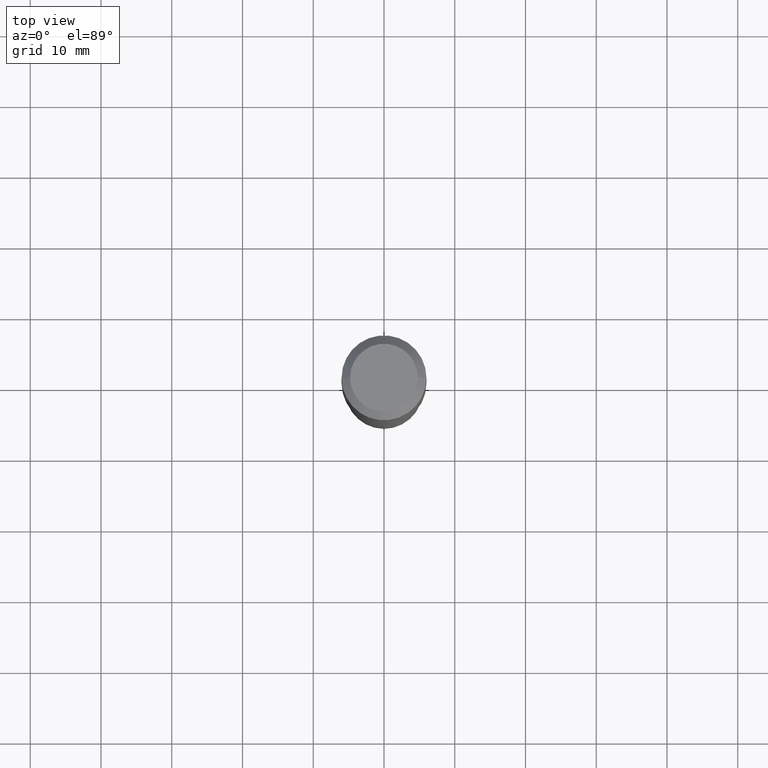
[diagram: clean part render]
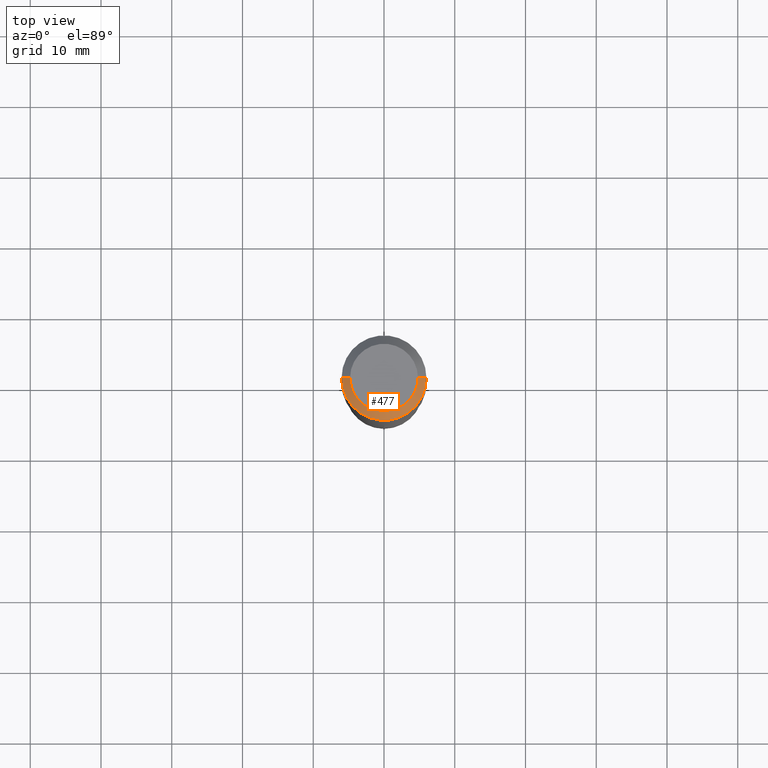
[diagram: same view with one face highlighted and labeled with its STEP entity id]
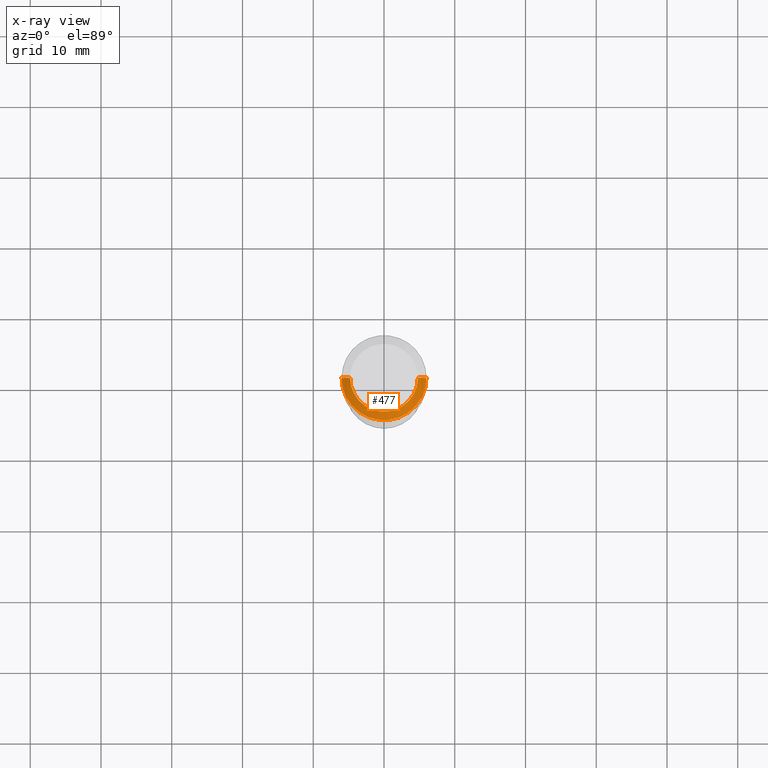
[diagram: x-ray of the same camera — body ghosted, the highlighted face saturated]
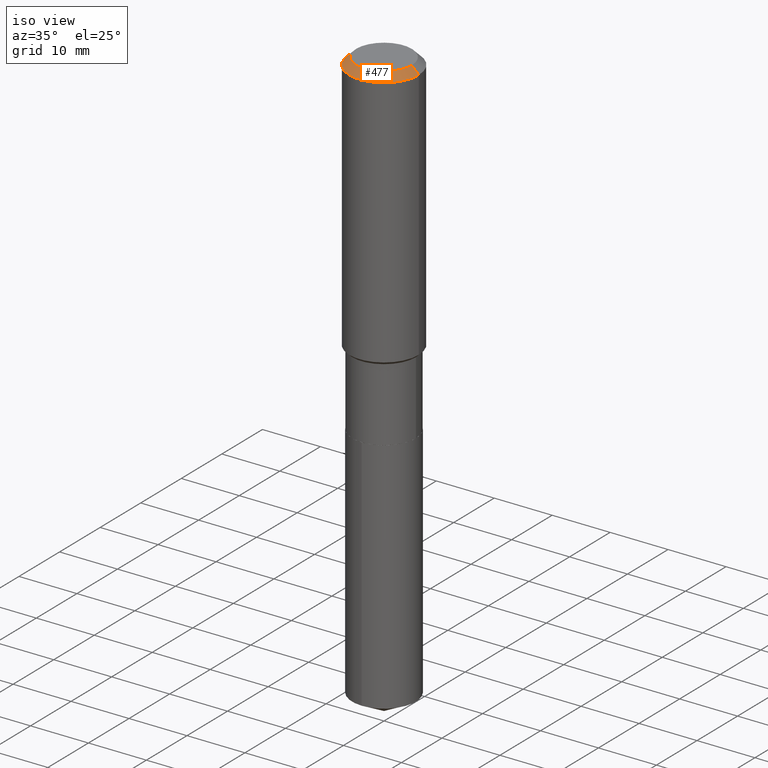
[diagram: same view with one face highlighted and labeled with its STEP entity id]
A machine part, top view. The second image highlights one B-rep face of the part: STEP entity #477.
The next image is the same camera in x-ray: the body ghosted, the highlighted face saturated — about 0% of this face is hidden behind the body in this view.
A second angle (iso view) of the same face is appended — the face is thin or edge-on in the first view.
In plain terms, the highlighted conical surface has half-angle 45 deg.
Its self-contained STEP definition (entity closure, byte-faithful):
#2 = EDGE_LOOP ( 'NONE', ( #228, #254, #69, #374 ) ) ;
#13 = LINE ( 'NONE', #47, #466 ) ;
#17 = AXIS2_PLACEMENT_3D ( 'NONE', #303, #269, #112 ) ;
#22 = EDGE_CURVE ( 'NONE', #409, #284, #159, .T. ) ;
#35 = CARTESIAN_POINT ( 'NONE',  ( -0.1889600000000000168, 1.401969416799070942E-15, 3.855188123706346622E-18 ) ) ;
#47 = CARTESIAN_POINT ( 'NONE',  ( 0.2361999999999999933, -1.785387205520586782E-15, -0.04724000000000028177 ) ) ;
#50 = CARTESIAN_POINT ( 'NONE',  ( -0.2361999999999999933, 1.484438206022545019E-15, -0.04724000000000028177 ) ) ;
#69 = ORIENTED_EDGE ( 'NONE', *, *, #386, .T. ) ;
#96 = CARTESIAN_POINT ( 'NONE',  ( 1.155239464041865506E-30, -1.649375784469511859E-16, -0.04724000000000028177 ) ) ;
#104 = VERTEX_POINT ( 'NONE', #317 ) ;
#105 = DIRECTION ( 'NONE',  ( -0.7071067811865453523, 2.468850131082234184E-15, -0.7071067811865496822 ) ) ;
#112 = DIRECTION ( 'NONE',  ( 1.000000000000000000, -6.982962677686266711E-15, 0.000000000000000000 ) ) ;
#118 = CARTESIAN_POINT ( 'NONE',  ( -9.427742298522546243E-47, 1.346031739168365344E-32, 3.855188123715862256E-18 ) ) ;
#159 = CIRCLE ( 'NONE', #452, 0.1889600000000000168 ) ;
#168 = DIRECTION ( 'NONE',  ( 0.7071067811865453523, -7.319954787623248157E-15, -0.7071067811865496822 ) ) ;
#173 = FACE_OUTER_BOUND ( 'NONE', #2, .T. ) ;
#204 = DIRECTION ( 'NONE',  ( -1.000000000000000000, 6.982962677686266711E-15, 0.000000000000000000 ) ) ;
#218 = CIRCLE ( 'NONE', #17, 0.2361999999999999933 ) ;
#228 = ORIENTED_EDGE ( 'NONE', *, *, #343, .F. ) ;
#238 = LINE ( 'NONE', #50, #390 ) ;
#254 = ORIENTED_EDGE ( 'NONE', *, *, #22, .F. ) ;
#259 = DIRECTION ( 'NONE',  ( 2.445468806185136597E-29, -3.491481338843145583E-15, -1.000000000000000000 ) ) ;
#266 = CONICAL_SURFACE ( 'NONE', #371, 0.2361999999999999933, 0.7853981633974452814 ) ;
#269 = DIRECTION ( 'NONE',  ( -2.445468806185136597E-29, 3.491481338843145583E-15, 1.000000000000000000 ) ) ;
#270 = EDGE_CURVE ( 'NONE', #104, #379, #218, .T. ) ;
#272 = DIRECTION ( 'NONE',  ( 1.000000000000000000, -6.982962677686266711E-15, 4.876185090822587894E-29 ) ) ;
#284 = VERTEX_POINT ( 'NONE', #449 ) ;
#303 = CARTESIAN_POINT ( 'NONE',  ( 1.155239464041865506E-30, -1.649375784469511859E-16, -0.04724000000000028177 ) ) ;
#310 = CARTESIAN_POINT ( 'NONE',  ( 0.2361999999999999933, -1.814313362916447440E-15, -0.04724000000000028177 ) ) ;
#317 = CARTESIAN_POINT ( 'NONE',  ( -0.2361999999999999933, -1.486533860322317535E-15, -0.04724000000000028177 ) ) ;
#343 = EDGE_CURVE ( 'NONE', #284, #379, #13, .T. ) ;
#371 = AXIS2_PLACEMENT_3D ( 'NONE', #96, #259, #204 ) ;
#374 = ORIENTED_EDGE ( 'NONE', *, *, #270, .T. ) ;
#379 = VERTEX_POINT ( 'NONE', #310 ) ;
#386 = EDGE_CURVE ( 'NONE', #409, #104, #238, .T. ) ;
#390 = VECTOR ( 'NONE', #105, 39.37007874015748143 ) ;
#409 = VERTEX_POINT ( 'NONE', #35 ) ;
#415 = DIRECTION ( 'NONE',  ( -2.445468806185136597E-29, 3.491481338843145583E-15, 1.000000000000000000 ) ) ;
#449 = CARTESIAN_POINT ( 'NONE',  ( 0.1889600000000000168, -1.540873453589747738E-15, 3.855188123725863225E-18 ) ) ;
#452 = AXIS2_PLACEMENT_3D ( 'NONE', #118, #415, #272 ) ;
#466 = VECTOR ( 'NONE', #168, 39.37007874015748143 ) ;
#477 = ADVANCED_FACE ( 'NONE', ( #173 ), #266, .T. ) ;